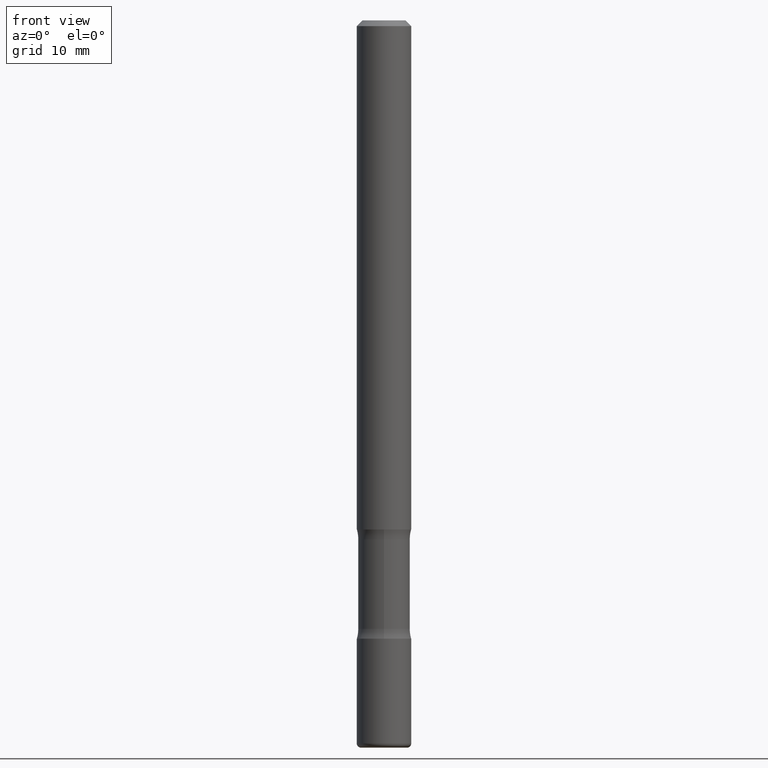
[diagram: clean part render]
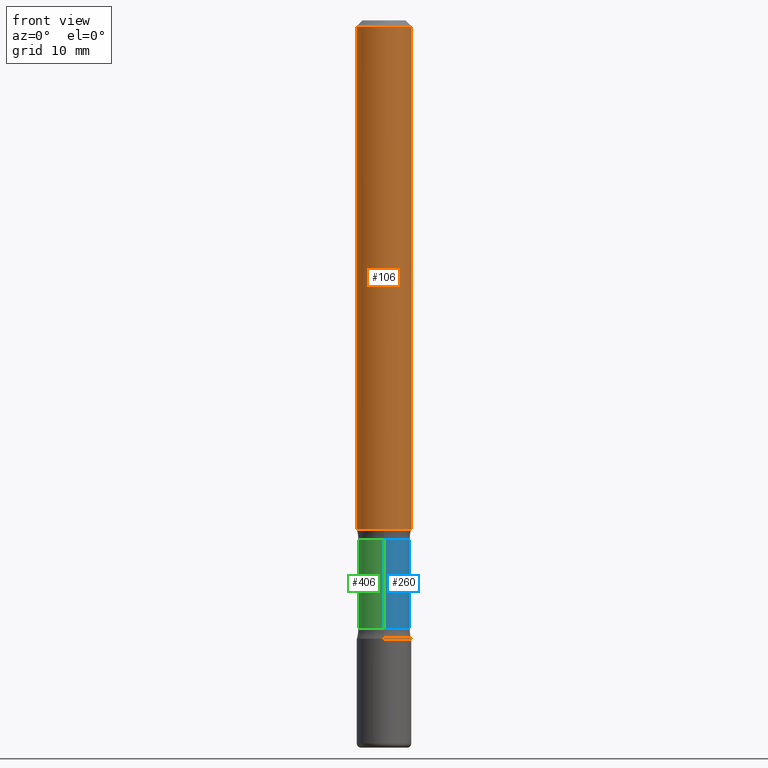
[diagram: same view with three faces highlighted in distinct colors, each labeled with its STEP entity id]
A machine part, front view with three faces highlighted in distinct colors.
Their STEP definitions:

[orange] entity #106 — the highlighted cylindrical surface (edge-blend (fillet) strip) has radius 2.3812 mm, axis along (-0, 0, 1).
#21 = ORIENTED_EDGE ( 'NONE', *, *, #429, .F. ) ;
#28 = CARTESIAN_POINT ( 'NONE',  ( 0.09375000000000004163, -6.764745094008592175E-15, -1.750000000000000000 ) ) ;
#41 = DIRECTION ( 'NONE',  ( 1.000000000000000000, -6.982962677686266711E-15, 4.876176775795935793E-29 ) ) ;
#49 = VERTEX_POINT ( 'NONE', #159 ) ;
#81 = FACE_OUTER_BOUND ( 'NONE', #198, .T. ) ;
#85 = DIRECTION ( 'NONE',  ( 1.000000000000000000, -6.982962677686267499E-15, 0.000000000000000000 ) ) ;
#91 = LINE ( 'NONE', #250, #92 ) ;
#92 = VECTOR ( 'NONE', #428, 39.37007874015748143 ) ;
#106 = ADVANCED_FACE ( 'NONE', ( #81 ), #235, .T. ) ;
#112 = CARTESIAN_POINT ( 'NONE',  ( -0.09375000000000004163, -2.423827170101085722E-15, -1.750000000000000000 ) ) ;
#126 = VERTEX_POINT ( 'NONE', #112 ) ;
#142 = AXIS2_PLACEMENT_3D ( 'NONE', #451, #276, #85 ) ;
#159 = CARTESIAN_POINT ( 'NONE',  ( 0.09374999999999981959, -7.130013140679428044E-16, -0.02000000000000001776 ) ) ;
#165 = EDGE_CURVE ( 'NONE', #126, #259, #91, .T. ) ;
#167 = DIRECTION ( 'NONE',  ( 1.000000000000000000, -6.982962677686269866E-15, 0.000000000000000000 ) ) ;
#180 = DIRECTION ( 'NONE',  ( -2.445468806185136597E-29, 3.491481338843145583E-15, 1.000000000000000000 ) ) ;
#198 = EDGE_LOOP ( 'NONE', ( #544, #368, #488, #21 ) ) ;
#235 = CYLINDRICAL_SURFACE ( 'NONE', #256, 0.09374999999999991673 ) ;
#236 = VECTOR ( 'NONE', #352, 39.37007874015748143 ) ;
#250 = CARTESIAN_POINT ( 'NONE',  ( -0.09374999999999991673, 6.661338147750933326E-16, -4.611501647113969791E-30 ) ) ;
#256 = AXIS2_PLACEMENT_3D ( 'NONE', #273, #405, #41 ) ;
#259 = VERTEX_POINT ( 'NONE', #381 ) ;
#273 = CARTESIAN_POINT ( 'NONE',  ( 0.000000000000000000, 0.000000000000000000, 0.000000000000000000 ) ) ;
#276 = DIRECTION ( 'NONE',  ( -2.445468806185136597E-29, 3.491481338843145583E-15, 1.000000000000000000 ) ) ;
#285 = CIRCLE ( 'NONE', #447, 0.09375000000000004163 ) ;
#289 = CARTESIAN_POINT ( 'NONE',  ( 4.279570410823988484E-29, -6.110092342975504671E-15, -1.750000000000000000 ) ) ;
#310 = EDGE_CURVE ( 'NONE', #126, #363, #285, .T. ) ;
#352 = DIRECTION ( 'NONE',  ( -2.445468806185136877E-29, 3.491481338843145188E-15, 1.000000000000000000 ) ) ;
#363 = VERTEX_POINT ( 'NONE', #28 ) ;
#368 = ORIENTED_EDGE ( 'NONE', *, *, #310, .T. ) ;
#381 = CARTESIAN_POINT ( 'NONE',  ( -0.09374999999999981959, 5.848231242562233185E-16, -0.02000000000000001776 ) ) ;
#405 = DIRECTION ( 'NONE',  ( -2.445468806185136597E-29, 3.491481338843145583E-15, 1.000000000000000000 ) ) ;
#428 = DIRECTION ( 'NONE',  ( -2.445468806185136877E-29, 3.491481338843145188E-15, 1.000000000000000000 ) ) ;
#429 = EDGE_CURVE ( 'NONE', #259, #49, #465, .T. ) ;
#447 = AXIS2_PLACEMENT_3D ( 'NONE', #289, #180, #167 ) ;
#451 = CARTESIAN_POINT ( 'NONE',  ( 4.890937612370276662E-31, -6.982962677686296539E-17, -0.02000000000000001776 ) ) ;
#465 = CIRCLE ( 'NONE', #142, 0.09374999999999981959 ) ;
#488 = ORIENTED_EDGE ( 'NONE', *, *, #545, .T. ) ;
#495 = LINE ( 'NONE', #543, #236 ) ;
#543 = CARTESIAN_POINT ( 'NONE',  ( 0.09374999999999991673, -6.546527510330869125E-16, 4.571415727308685602E-30 ) ) ;
#544 = ORIENTED_EDGE ( 'NONE', *, *, #165, .F. ) ;
#545 = EDGE_CURVE ( 'NONE', #363, #49, #495, .T. ) ;

[blue] entity #260 — the highlighted cylindrical surface (edge-blend (fillet) strip) has radius 2.2622 mm, axis along (0, -0, -1).
#12 = EDGE_CURVE ( 'NONE', #467, #431, #296, .T. ) ;
#15 = ORIENTED_EDGE ( 'NONE', *, *, #140, .T. ) ;
#18 = VECTOR ( 'NONE', #326, 39.37007874015748143 ) ;
#20 = ORIENTED_EDGE ( 'NONE', *, *, #98, .T. ) ;
#50 = CARTESIAN_POINT ( 'NONE',  ( 4.325656488947447574E-29, -6.281246590105103764E-15, -1.783910210022204623 ) ) ;
#98 = EDGE_CURVE ( 'NONE', #246, #344, #297, .T. ) ;
#105 = CARTESIAN_POINT ( 'NONE',  ( 6.219201134814940684E-16, 0.08906249999999125977, -2.500000000000000444 ) ) ;
#124 = DIRECTION ( 'NONE',  ( 6.982962677686265133E-15, 1.000000000000000000, -3.067338098149349877E-15 ) ) ;
#140 = EDGE_CURVE ( 'NONE', #344, #431, #248, .T. ) ;
#174 = DIRECTION ( 'NONE',  ( 6.982962677686265133E-15, 1.000000000000000000, -6.134676196298701332E-15 ) ) ;
#211 = CARTESIAN_POINT ( 'NONE',  ( -6.270923951087611034E-16, -0.08906250000000623390, -1.783910210022204401 ) ) ;
#220 = AXIS2_PLACEMENT_3D ( 'NONE', #383, #294, #174 ) ;
#246 = VERTEX_POINT ( 'NONE', #434 ) ;
#248 = LINE ( 'NONE', #523, #18 ) ;
#260 = ADVANCED_FACE ( 'NONE', ( #531 ), #379, .T. ) ;
#294 = DIRECTION ( 'NONE',  ( 2.553476385947133355E-29, -3.336808337214295667E-15, -1.000000000000000000 ) ) ;
#296 = CIRCLE ( 'NONE', #372, 0.08906249999999993339 ) ;
#297 = CIRCLE ( 'NONE', #556, 0.08906249999999994726 ) ;
#311 = DIRECTION ( 'NONE',  ( 6.982962677686265133E-15, 1.000000000000000000, -3.067338098149350666E-15 ) ) ;
#316 = DIRECTION ( 'NONE',  ( 2.553476385947133355E-29, -3.336808337214295667E-15, -1.000000000000000000 ) ) ;
#326 = DIRECTION ( 'NONE',  ( 2.553476385947133355E-29, -3.336808337214295667E-15, -1.000000000000000000 ) ) ;
#335 = LINE ( 'NONE', #105, #538 ) ;
#338 = EDGE_LOOP ( 'NONE', ( #20, #15, #468, #385 ) ) ;
#344 = VERTEX_POINT ( 'NONE', #211 ) ;
#370 = CARTESIAN_POINT ( 'NONE',  ( 5.110032292609207884E-29, -7.306245973522905960E-15, -2.091089789977795821 ) ) ;
#372 = AXIS2_PLACEMENT_3D ( 'NONE', #370, #459, #311 ) ;
#379 = CYLINDRICAL_SURFACE ( 'NONE', #220, 0.08906249999999993339 ) ;
#383 = CARTESIAN_POINT ( 'NONE',  ( 6.154174857873591467E-29, -8.670700971497045879E-15, -2.500000000000000000 ) ) ;
#385 = ORIENTED_EDGE ( 'NONE', *, *, #396, .F. ) ;
#387 = DIRECTION ( 'NONE',  ( 2.553476385947133355E-29, -3.336808337214295667E-15, -1.000000000000000000 ) ) ;
#396 = EDGE_CURVE ( 'NONE', #246, #467, #335, .T. ) ;
#431 = VERTEX_POINT ( 'NONE', #462 ) ;
#434 = CARTESIAN_POINT ( 'NONE',  ( 6.219201134814759246E-16, 0.08906249999999366063, -1.783910210022204845 ) ) ;
#459 = DIRECTION ( 'NONE',  ( 2.553476385947133355E-29, -3.336808337214295667E-15, -1.000000000000000000 ) ) ;
#462 = CARTESIAN_POINT ( 'NONE',  ( -6.270923951087521301E-16, -0.08906250000000723310, -2.091089789977795377 ) ) ;
#467 = VERTEX_POINT ( 'NONE', #478 ) ;
#468 = ORIENTED_EDGE ( 'NONE', *, *, #12, .F. ) ;
#478 = CARTESIAN_POINT ( 'NONE',  ( 6.219201134814836160E-16, 0.08906249999999261979, -2.091089789977795821 ) ) ;
#523 = CARTESIAN_POINT ( 'NONE',  ( -6.110131029264649859E-16, -0.08906250000000860700, -2.499999999999999556 ) ) ;
#531 = FACE_OUTER_BOUND ( 'NONE', #338, .T. ) ;
#538 = VECTOR ( 'NONE', #387, 39.37007874015748143 ) ;
#556 = AXIS2_PLACEMENT_3D ( 'NONE', #50, #316, #124 ) ;

[green] entity #406 — the highlighted cylindrical surface (edge-blend (fillet) strip) has radius 2.2622 mm, axis along (0, -0, -1).
#18 = VECTOR ( 'NONE', #326, 39.37007874015748143 ) ;
#34 = ORIENTED_EDGE ( 'NONE', *, *, #47, .T. ) ;
#46 = AXIS2_PLACEMENT_3D ( 'NONE', #458, #452, #497 ) ;
#47 = EDGE_CURVE ( 'NONE', #344, #246, #141, .T. ) ;
#60 = CARTESIAN_POINT ( 'NONE',  ( 6.154174857873591467E-29, -8.670700971497045879E-15, -2.500000000000000000 ) ) ;
#105 = CARTESIAN_POINT ( 'NONE',  ( 6.219201134814940684E-16, 0.08906249999999125977, -2.500000000000000444 ) ) ;
#140 = EDGE_CURVE ( 'NONE', #344, #431, #248, .T. ) ;
#141 = CIRCLE ( 'NONE', #46, 0.08906249999999994726 ) ;
#183 = AXIS2_PLACEMENT_3D ( 'NONE', #60, #299, #436 ) ;
#211 = CARTESIAN_POINT ( 'NONE',  ( -6.270923951087611034E-16, -0.08906250000000623390, -1.783910210022204401 ) ) ;
#246 = VERTEX_POINT ( 'NONE', #434 ) ;
#248 = LINE ( 'NONE', #523, #18 ) ;
#254 = EDGE_LOOP ( 'NONE', ( #533, #34, #339, #332 ) ) ;
#257 = CIRCLE ( 'NONE', #438, 0.08906249999999993339 ) ;
#299 = DIRECTION ( 'NONE',  ( 2.553476385947133355E-29, -3.336808337214295667E-15, -1.000000000000000000 ) ) ;
#313 = DIRECTION ( 'NONE',  ( 6.982962677686265133E-15, 1.000000000000000000, -3.067338098149350666E-15 ) ) ;
#326 = DIRECTION ( 'NONE',  ( 2.553476385947133355E-29, -3.336808337214295667E-15, -1.000000000000000000 ) ) ;
#332 = ORIENTED_EDGE ( 'NONE', *, *, #550, .F. ) ;
#335 = LINE ( 'NONE', #105, #538 ) ;
#339 = ORIENTED_EDGE ( 'NONE', *, *, #396, .T. ) ;
#342 = CYLINDRICAL_SURFACE ( 'NONE', #183, 0.08906249999999993339 ) ;
#344 = VERTEX_POINT ( 'NONE', #211 ) ;
#387 = DIRECTION ( 'NONE',  ( 2.553476385947133355E-29, -3.336808337214295667E-15, -1.000000000000000000 ) ) ;
#396 = EDGE_CURVE ( 'NONE', #246, #467, #335, .T. ) ;
#406 = ADVANCED_FACE ( 'NONE', ( #470 ), #342, .T. ) ;
#431 = VERTEX_POINT ( 'NONE', #462 ) ;
#434 = CARTESIAN_POINT ( 'NONE',  ( 6.219201134814759246E-16, 0.08906249999999366063, -1.783910210022204845 ) ) ;
#436 = DIRECTION ( 'NONE',  ( 6.982962677686265133E-15, 1.000000000000000000, -6.134676196298701332E-15 ) ) ;
#438 = AXIS2_PLACEMENT_3D ( 'NONE', #549, #498, #313 ) ;
#452 = DIRECTION ( 'NONE',  ( 2.553476385947133355E-29, -3.336808337214295667E-15, -1.000000000000000000 ) ) ;
#458 = CARTESIAN_POINT ( 'NONE',  ( 4.325656488947447574E-29, -6.281246590105103764E-15, -1.783910210022204623 ) ) ;
#462 = CARTESIAN_POINT ( 'NONE',  ( -6.270923951087521301E-16, -0.08906250000000723310, -2.091089789977795377 ) ) ;
#467 = VERTEX_POINT ( 'NONE', #478 ) ;
#470 = FACE_OUTER_BOUND ( 'NONE', #254, .T. ) ;
#478 = CARTESIAN_POINT ( 'NONE',  ( 6.219201134814836160E-16, 0.08906249999999261979, -2.091089789977795821 ) ) ;
#497 = DIRECTION ( 'NONE',  ( 6.982962677686265133E-15, 1.000000000000000000, -3.067338098149349877E-15 ) ) ;
#498 = DIRECTION ( 'NONE',  ( 2.553476385947133355E-29, -3.336808337214295667E-15, -1.000000000000000000 ) ) ;
#523 = CARTESIAN_POINT ( 'NONE',  ( -6.110131029264649859E-16, -0.08906250000000860700, -2.499999999999999556 ) ) ;
#533 = ORIENTED_EDGE ( 'NONE', *, *, #140, .F. ) ;
#538 = VECTOR ( 'NONE', #387, 39.37007874015748143 ) ;
#549 = CARTESIAN_POINT ( 'NONE',  ( 5.110032292609207884E-29, -7.306245973522905960E-15, -2.091089789977795821 ) ) ;
#550 = EDGE_CURVE ( 'NONE', #431, #467, #257, .T. ) ;